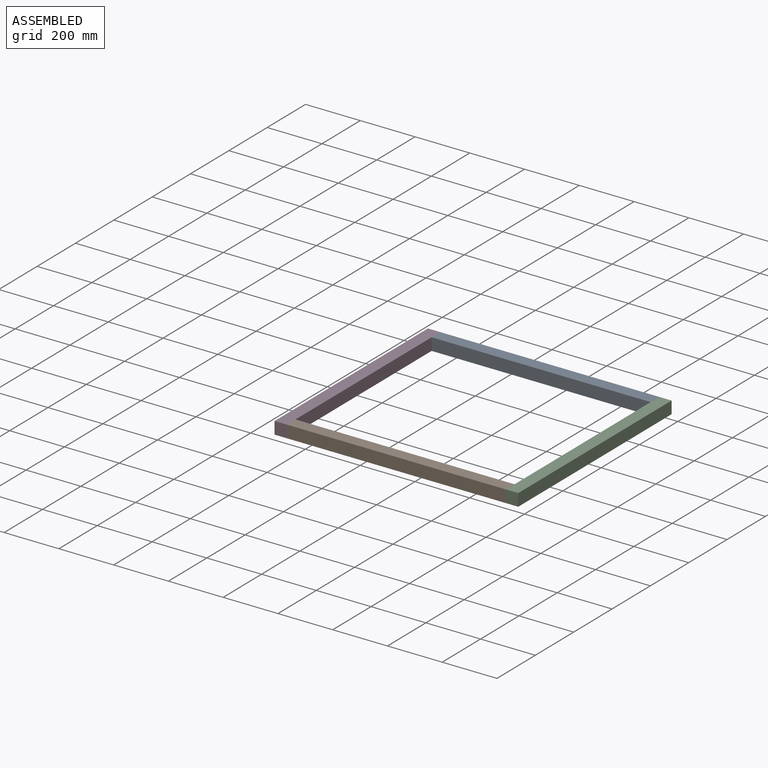
[diagram: assembled view]
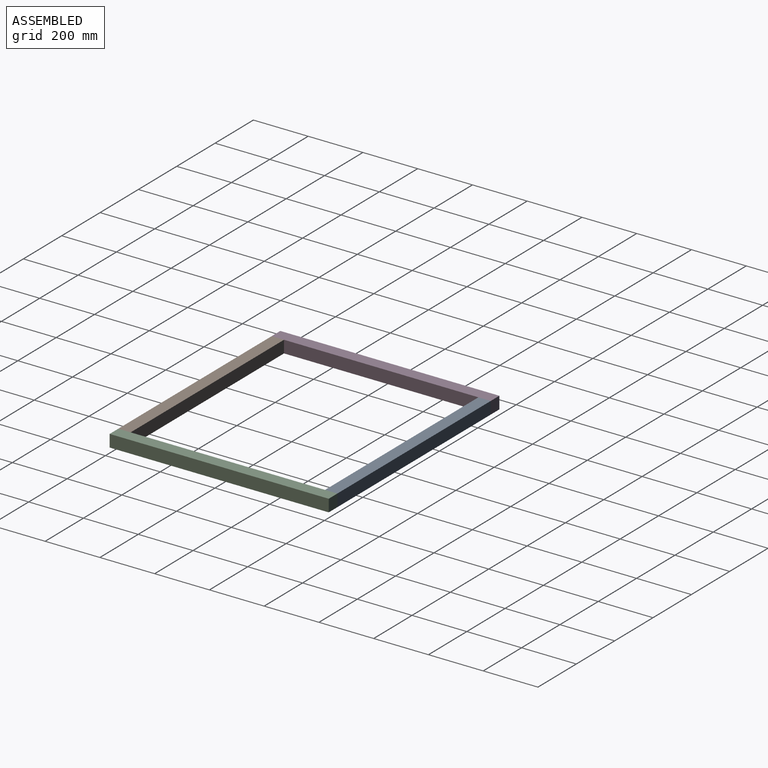
[diagram: assembled view, second angle]
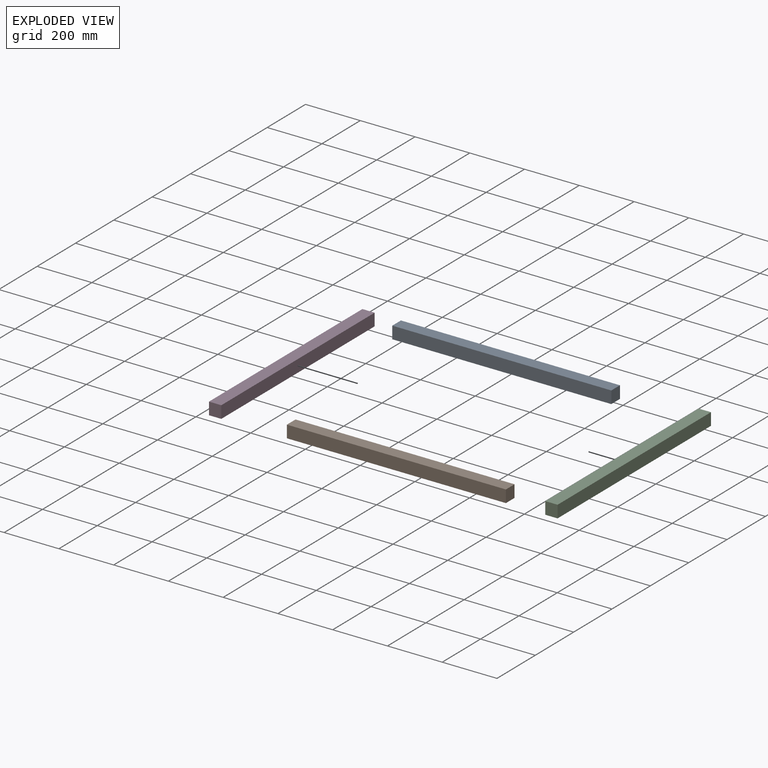
[diagram: exploded view]
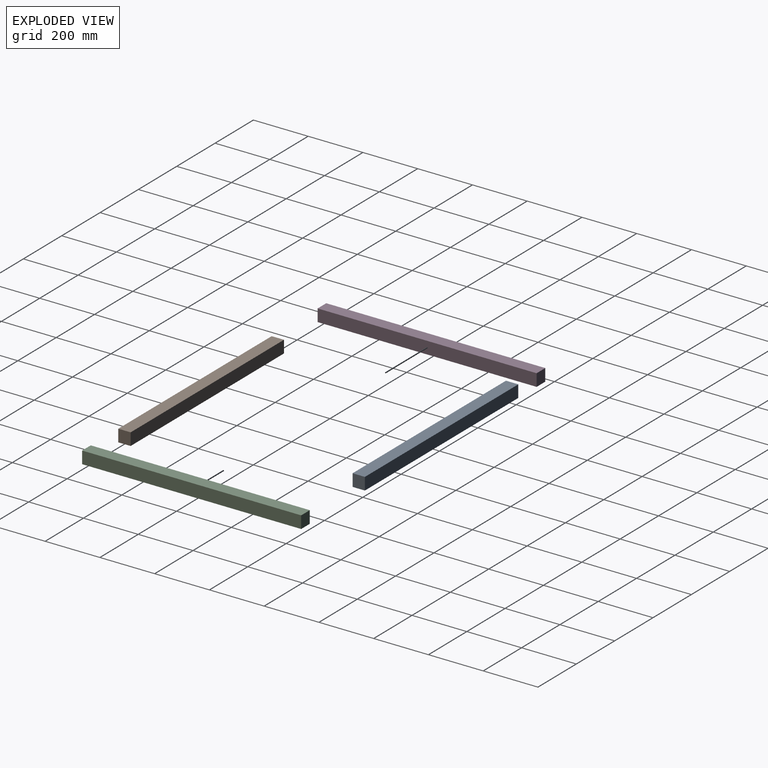
[diagram: exploded view, second angle]
ASSEMBLY  parts=4 mates=3
PART A: 6 faces, bbox 45x45x800 mm
  f0: plane 800x45mm, normal (1,0,0), area 36000mm2, adj f1,f3,f4,f5
  f1: plane 800x45mm, normal (0,1,0), area 36000mm2, adj f0,f2,f4,f5
  f2: plane 800x45mm, normal (-1,0,0), area 36000mm2, adj f1,f3,f4,f5
  f3: plane 800x45mm, normal (0,-1,0), area 36000mm2, adj f0,f2,f4,f5
  f4: plane 45x45mm, normal (0,0,1), area 2025mm2, adj f0,f1,f2,f3
  f5: plane 45x45mm, normal (0,0,-1), area 2025mm2, adj f0,f1,f2,f3
PART B: same geometry as A
PART C: same geometry as A
PART D: same geometry as A
PLACE A rot(axis=(0,-1,0),90deg) t=(-67.5,377.5,22.5)mm
PLACE B rot(axis=(0,1,0),90deg) t=(-67.5,-377.5,22.5)mm
PLACE C rot(axis=(-1,0,0),90deg) t=(355,0,22.5)mm
PLACE D rot(axis=(0.58,0.58,-0.58),120deg) t=(-490,0,22.5)mm
MATE fastened B.f4 <-> C.f2  axis (1,0,0) through (332.5,-400,22.5)mm
MATE fastened D.f4 <-> B.f3  axis (0,-1,0) through (-467.5,-400,22.5)mm
MATE fastened A.f4 <-> D.f1  axis (-1,0,0) through (-467.5,400,22.5)mm
